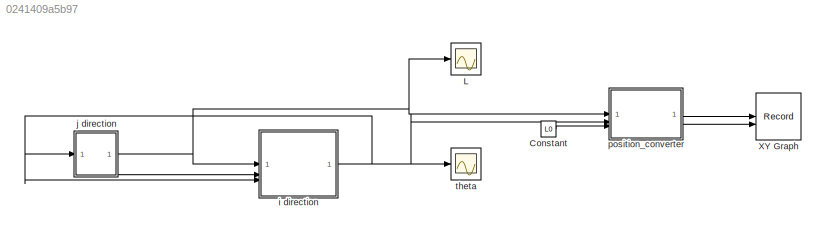
MODEL slx_0241409a5b97
KIND model
CONFIG AbsTol = auto
CONFIG EnableMultiTasking = off
CONFIG FixedStep = 0.01
CONFIG MaxStep = auto
CONFIG MinStep = auto
CONFIG RelTol = 1e-3
CONFIG SampleTimeConstraint = Unconstrained
CONFIG SolverName = FixedStepAuto
CONFIG StartTime = 0.0
CONFIG StopTime = 10.0
BLOCK [Constant] Constant
  Value = L0
BLOCK [Scope] L
  Floating = off
  NumInputPorts = 1
  ScopeSpecificationString = Simulink.scopes.TimeScopeBlockCfg('CurrentConfiguration', extmgr.ConfigurationSet(extmgr.Configuration('Core','General UI',true),extmgr.Configuration('Core','Source UI',true),extmgr.Configuration('Sources','WiredSimulink',true),extmgr.Configuration('Visuals','Time Domain',true,'SerializedDisplays',{struct('MinYLimReal','-0.24293','MaxYLimReal','2.18638','YLabelReal','','MinYLimMag','0.00000','MaxY...<+1519ch>
BLOCK [Record] XY Graph
  CompatibilityTag = XY
  FileSettingsInternal = {"entries":[{"content":{"excelSettings":{"content":{},"type":"Streamout.ExcelSettings"}},"type":"Streamout.FileSettingStorage","uuid":""}],"packageUris":["http:\/\/schema.mathworks.com\/mf0\/streamout_blocks\/R2020a"],"version":"1.0"}
  Layout = [1 1]
  SignalsInternal = {"entries":[{"content":{"signals":[{"content":{"blockPath":[],"dimensions":[1],"domain":"","lineColor":"#a2142f","plots":[ 1 ],"port":1,"sid":[""],"signalID":1,"signalName":"position_converter:1"},"type":"RecordBlkView.Signal","uuid":""},{"content":{"blockPath":[],"dimensions":[1],"domain":"","lineColor":"#139fff","plots":[ 1 ],"port":2,"sid":[""],"signalID":2,"signalName":"position_converter:2"},...<+186ch>
  VisualizationBindings = {"xyplotplugin":{"info":[{"series":[{"bindingParametersList":[{"parameter":"X-Axis","signalID":1,"signalName":"position_converter:1"},{"parameter":"Y-Axis","signalID":2,"signalName":"position_converter:2"}],"seriesID":0}],"subplotID":1}]}}
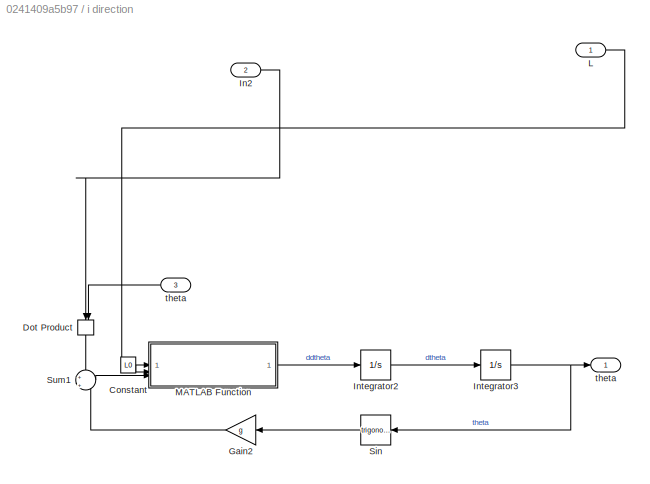
BLOCK [SubSystem] i direction
BLOCK [Constant] i direction/Constant
  Value = L0
BLOCK [DotProduct] i direction/Dot Product
  NameLocation = left
  OutDataTypeStr = Inherit: Inherit via internal rule
BLOCK [Gain] i direction/Gain2
  Gain = g
  NameLocation = top
BLOCK [Inport] i direction/In2
  IconDisplay = Signal name
  Port = 2
BLOCK [Integrator] i direction/Integrator2
BLOCK [Integrator] i direction/Integrator3
  InitialCondition = initial_theta
BLOCK [Inport] i direction/L
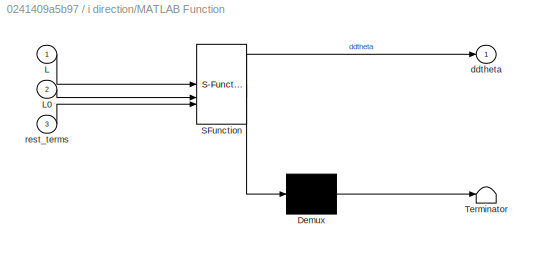
BLOCK [SubSystem] i direction/MATLAB Function
  ErrorFcn = Stateflow.Translate.translate
  PermitHierarchicalResolution = ExplicitOnly
  SFBlockType = MATLAB Function
  TreatAsAtomicUnit = on
BLOCK [Demux] i direction/MATLAB Function/ Demux 
  Outputs = 1
BLOCK [S-Function] i direction/MATLAB Function/ SFunction 
  EnableBusSupport = on
  FunctionName = sf_sfun
  PortCounts = [3 2]
  SFcnIsStateOwnerBlock = off
  SFunctionDeploymentMode = off
  Tag = Stateflow S-Function 2
BLOCK [Terminator] i direction/MATLAB Function/ Terminator 
BLOCK [Inport] i direction/MATLAB Function/L
BLOCK [Inport] i direction/MATLAB Function/L0
  Port = 2
BLOCK [Outport] i direction/MATLAB Function/ddtheta
BLOCK [Inport] i direction/MATLAB Function/rest_terms
  Port = 3
BLOCK [Trigonometry] i direction/Sin
  NameLocation = top
BLOCK [Sum] i direction/Sum1
  Inputs = +|+
BLOCK [Inport] i direction/theta
  Port = 3
BLOCK [Outport] i direction/theta 
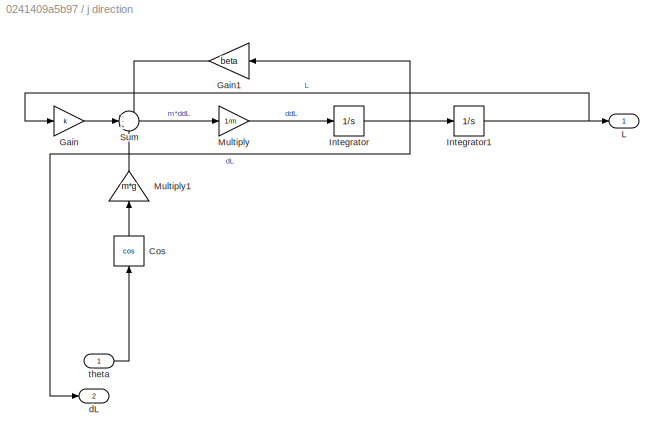
BLOCK [SubSystem] j direction
BLOCK [Trigonometry] j direction/Cos
  NameLocation = right
  Operator = cos
BLOCK [Gain] j direction/Gain
  Gain = k
BLOCK [Gain] j direction/Gain1
  Gain = beta
  NameLocation = top
BLOCK [Integrator] j direction/Integrator
BLOCK [Integrator] j direction/Integrator1
  InitialCondition = initial_L
BLOCK [Outport] j direction/L
BLOCK [Gain] j direction/Multiply
  Gain = 1/m
BLOCK [Gain] j direction/Multiply1
  Gain = m*g
  NameLocation = right
BLOCK [Sum] j direction/Sum
  Inputs = --+
BLOCK [Outport] j direction/dL
  Port = 2
BLOCK [Inport] j direction/theta
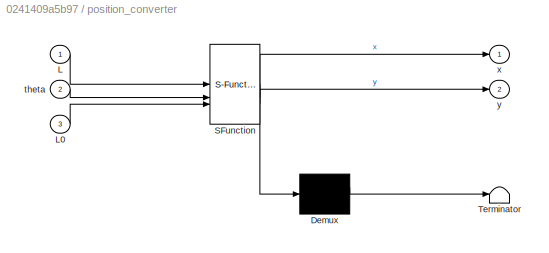
BLOCK [SubSystem] position_converter
  ErrorFcn = Stateflow.Translate.translate
  PermitHierarchicalResolution = ExplicitOnly
  SFBlockType = MATLAB Function
  TreatAsAtomicUnit = on
BLOCK [Demux] position_converter/ Demux 
  Outputs = 1
BLOCK [S-Function] position_converter/ SFunction 
  EnableBusSupport = on
  FunctionName = sf_sfun
  PortCounts = [3 3]
  SFcnIsStateOwnerBlock = off
  SFunctionDeploymentMode = off
  Tag = Stateflow S-Function 1
BLOCK [Terminator] position_converter/ Terminator 
BLOCK [Inport] position_converter/L
BLOCK [Inport] position_converter/L0
  Port = 3
BLOCK [Inport] position_converter/theta
  Port = 2
BLOCK [Outport] position_converter/x
BLOCK [Outport] position_converter/y
  Port = 2
BLOCK [Scope] theta
  Floating = off
  NumInputPorts = 1
  ScopeSpecificationString = Simulink.scopes.TimeScopeBlockCfg('CurrentConfiguration', extmgr.ConfigurationSet(extmgr.Configuration('Core','General UI',true),extmgr.Configuration('Core','Source UI',true),extmgr.Configuration('Sources','WiredSimulink',true,'DataLoggingVariableName','ScopeData1'),extmgr.Configuration('Visuals','Time Domain',true,'SerializedDisplays',{struct('MinYLimReal','-1.00000','MaxYLimReal','1.00000','YLab...<+1495ch>
LINE Constant:1 -> position_converter:3
LINE i direction/Constant:1 -> i direction/MATLAB Function:2
LINE i direction/Dot Product:1 -> i direction/Sum1:1
LINE i direction/Gain2:1 -> i direction/Sum1:2
LINE i direction/In2:1 -> i direction/Dot Product:1
LINE i direction/Integrator2:1 -> i direction/Integrator3:1
NET i direction/Integrator3:1 -> i direction/Sin:1, i direction/theta :1
LINE i direction/L:1 -> i direction/MATLAB Function:1
LINE i direction/MATLAB Function:1 -> i direction/Integrator2:1
LINE i direction/Sin:1 -> i direction/Gain2:1
LINE i direction/Sum1:1 -> i direction/MATLAB Function:3
LINE i direction/theta:1 -> i direction/Dot Product:2
NET i direction:1 -> i direction:3, j direction:1, position_converter:2, theta:1
LINE j direction/Cos:1 -> j direction/Multiply1:1
LINE j direction/Gain1:1 -> j direction/Sum:1
LINE j direction/Gain:1 -> j direction/Sum:2
NET j direction/Integrator1:1 -> j direction/Gain:1, j direction/L:1
NET j direction/Integrator:1 -> j direction/Gain1:1, j direction/Integrator1:1, j direction/dL:1
LINE j direction/Multiply1:1 -> j direction/Sum:3
LINE j direction/Multiply:1 -> j direction/Integrator:1
LINE j direction/Sum:1 -> j direction/Multiply:1
LINE j direction/theta:1 -> j direction/Cos:1
NET j direction:1 -> L:1, i direction:1, position_converter:1
LINE j direction:2 -> i direction:2
LINE position_converter:1 -> XY Graph:1
LINE position_converter:2 -> XY Graph:2
note: NET lines group one-source signal fan-out (src -> all destinations, sorted); 1:1 wires keep LINE
CHART position_converter states=1 transitions=1
  STATE_LABEL 'eML_blk_kernel()'
  STATE_LABEL 'SCRIPT:\nfunction [x, y]= fcn(L, theta, L0)\n\nx = (L + L0) * sin(theta);\n\ny = - (L + L0) * cos(theta);\n'
CHART i direction/MATLAB Function states=1 transitions=1
  STATE_LABEL 'eML_blk_kernel()'
  STATE_LABEL 'SCRIPT:\nfunction ddtheta = fcn(L, L0, rest_terms)\n\nddtheta = - rest_terms / (L + L0);'
CHART  states=0 transitions=0
CHART  states=0 transitions=0
